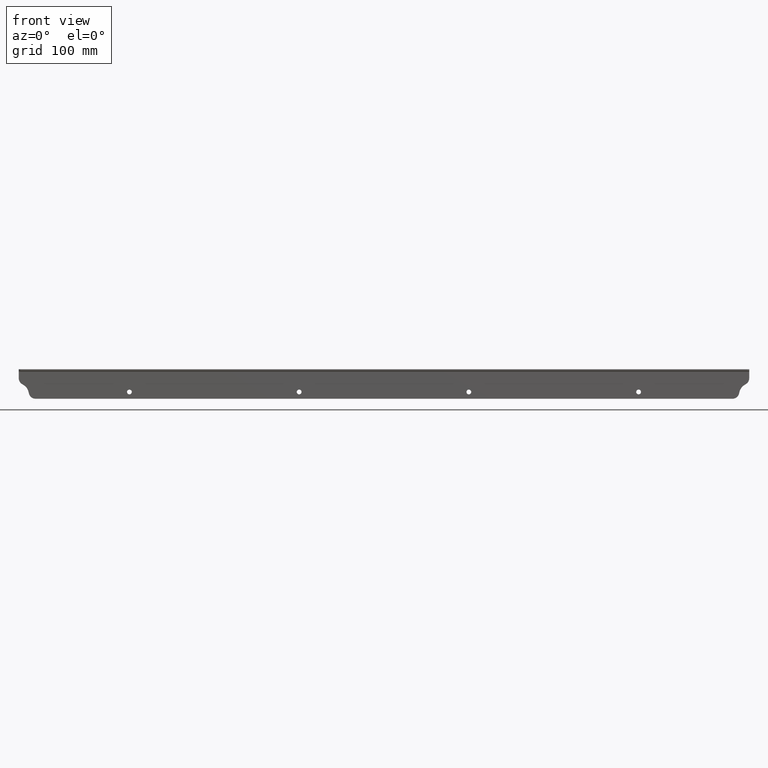
[diagram: clean part render]
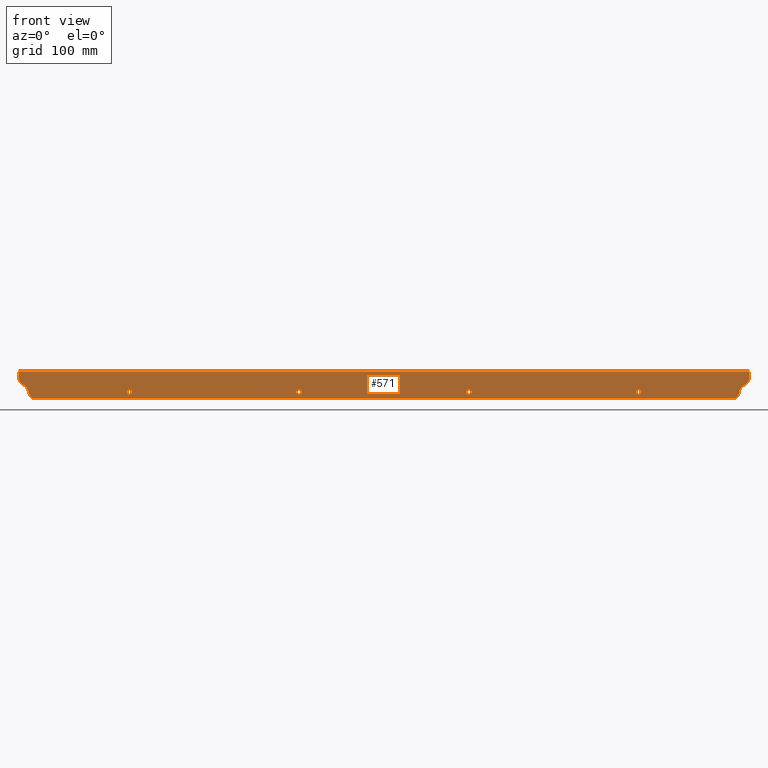
[diagram: same view with one face highlighted and labeled with its STEP entity id]
A machine part, front view. The second image highlights one B-rep face of the part: STEP entity #571.
In plain terms, the highlighted planar face has unit normal (-0, 1, 0).
Its self-contained STEP definition (entity closure, byte-faithful):
#6 = VERTEX_POINT ( 'NONE', #806 ) ;
#8 = VERTEX_POINT ( 'NONE', #691 ) ;
#12 = CIRCLE ( 'NONE', #1245, 10.00000000000000888 ) ;
#13 = DIRECTION ( 'NONE',  ( 0.000000000000000000, 0.000000000000000000, 1.000000000000000000 ) ) ;
#15 = CARTESIAN_POINT ( 'NONE',  ( 513.2979401543625499, 1086.305264068951146, 1223.999999999999318 ) ) ;
#24 = VERTEX_POINT ( 'NONE', #305 ) ;
#32 = EDGE_CURVE ( 'NONE', #136, #889, #115, .T. ) ;
#37 = CARTESIAN_POINT ( 'NONE',  ( 540.0000000000000000, 1086.305264068951146, 1220.000000000000000 ) ) ;
#44 = DIRECTION ( 'NONE',  ( 0.000000000000000000, 0.000000000000000000, 1.000000000000000000 ) ) ;
#46 = ORIENTED_EDGE ( 'NONE', *, *, #910, .T. ) ;
#49 = EDGE_CURVE ( 'NONE', #524, #147, #514, .T. ) ;
#51 = CARTESIAN_POINT ( 'NONE',  ( 125.0000000000000000, 1086.305264068951146, 1223.999999999999545 ) ) ;
#64 = EDGE_CURVE ( 'NONE', #147, #1262, #91, .T. ) ;
#65 = ORIENTED_EDGE ( 'NONE', *, *, #1186, .T. ) ;
#86 = DIRECTION ( 'NONE',  ( 0.000000000000000000, 0.000000000000000000, -1.000000000000000000 ) ) ;
#91 = CIRCLE ( 'NONE', #139, 10.00000000000000888 ) ;
#103 = CARTESIAN_POINT ( 'NONE',  ( 523.1875919490430533, 1086.305264068951146, 1222.518518518518022 ) ) ;
#111 = EDGE_CURVE ( 'NONE', #6, #1047, #720, .T. ) ;
#113 = DIRECTION ( 'NONE',  ( -0.000000000000000000, 1.000000000000000000, 0.000000000000000000 ) ) ;
#115 = CIRCLE ( 'NONE', #1173, 3.499999999989844568 ) ;
#133 = DIRECTION ( 'NONE',  ( 0.000000000000000000, -0.000000000000000000, 1.000000000000000000 ) ) ;
#135 = VERTEX_POINT ( 'NONE', #518 ) ;
#136 = VERTEX_POINT ( 'NONE', #1115 ) ;
#139 = AXIS2_PLACEMENT_3D ( 'NONE', #1108, #990, #229 ) ;
#142 = CIRCLE ( 'NONE', #187, 3.499999999989844568 ) ;
#146 = CIRCLE ( 'NONE', #1176, 3.499999999989844568 ) ;
#147 = VERTEX_POINT ( 'NONE', #926 ) ;
#149 = DIRECTION ( 'NONE',  ( 0.000000000000000000, 0.000000000000000000, 1.000000000000000000 ) ) ;
#152 = DIRECTION ( 'NONE',  ( -0.000000000000000000, 1.000000000000000000, 0.000000000000000000 ) ) ;
#164 = DIRECTION ( 'NONE',  ( 0.000000000000000000, 0.000000000000000000, 1.000000000000000000 ) ) ;
#165 = AXIS2_PLACEMENT_3D ( 'NONE', #946, #649, #164 ) ;
#187 = AXIS2_PLACEMENT_3D ( 'NONE', #335, #918, #13 ) ;
#189 = DIRECTION ( 'NONE',  ( -0.000000000000000000, 1.000000000000000000, 0.000000000000000000 ) ) ;
#192 = ORIENTED_EDGE ( 'NONE', *, *, #982, .T. ) ;
#207 = ORIENTED_EDGE ( 'NONE', *, *, #379, .F. ) ;
#215 = VERTEX_POINT ( 'NONE', #1050 ) ;
#217 = AXIS2_PLACEMENT_3D ( 'NONE', #721, #839, #44 ) ;
#221 = DIRECTION ( 'NONE',  ( -0.000000000000000000, 1.000000000000000000, 0.000000000000000000 ) ) ;
#229 = DIRECTION ( 'NONE',  ( 0.000000000000000000, 0.000000000000000000, 1.000000000000000000 ) ) ;
#235 = ORIENTED_EDGE ( 'NONE', *, *, #874, .T. ) ;
#236 = CIRCLE ( 'NONE', #440, 3.499999999989844568 ) ;
#243 = CARTESIAN_POINT ( 'NONE',  ( 605.0096185640381918, 1086.305264068951146, 1257.499999999999545 ) ) ;
#254 = ORIENTED_EDGE ( 'NONE', *, *, #1061, .T. ) ;
#267 = CARTESIAN_POINT ( 'NONE',  ( -538.0000000000001137, 1086.305264068951146, 1253.499999999999545 ) ) ;
#271 = DIRECTION ( 'NONE',  ( 0.000000000000000000, 0.000000000000000000, 1.000000000000000000 ) ) ;
#274 = CIRCLE ( 'NONE', #165, 3.499999999989844568 ) ;
#275 = ORIENTED_EDGE ( 'NONE', *, *, #111, .T. ) ;
#282 = VERTEX_POINT ( 'NONE', #267 ) ;
#284 = EDGE_CURVE ( 'NONE', #215, #628, #274, .T. ) ;
#292 = VERTEX_POINT ( 'NONE', #553 ) ;
#295 = AXIS2_PLACEMENT_3D ( 'NONE', #37, #152, #616 ) ;
#301 = CARTESIAN_POINT ( 'NONE',  ( -125.0000000000000000, 1086.305264068951146, 1227.499999999989313 ) ) ;
#305 = CARTESIAN_POINT ( 'NONE',  ( -538.0000000000001137, 1086.305264068951146, 1244.186773244895903 ) ) ;
#319 = EDGE_LOOP ( 'NONE', ( #207, #65, #936, #254, #275, #342, #235, #192, #830, #922 ) ) ;
#324 = DIRECTION ( 'NONE',  ( 0.000000000000000000, 0.000000000000000000, 1.000000000000000000 ) ) ;
#330 = CARTESIAN_POINT ( 'NONE',  ( -375.0000000000000000, 1086.305264068951146, 1223.999999999999545 ) ) ;
#335 = CARTESIAN_POINT ( 'NONE',  ( -125.0000000000000000, 1086.305264068951146, 1223.999999999999545 ) ) ;
#342 = ORIENTED_EDGE ( 'NONE', *, *, #710, .T. ) ;
#350 = CARTESIAN_POINT ( 'NONE',  ( 125.0000000000000000, 1086.305264068951146, 1223.999999999999545 ) ) ;
#351 = CIRCLE ( 'NONE', #295, 16.99999999999990408 ) ;
#353 = CIRCLE ( 'NONE', #1243, 3.499999999989844568 ) ;
#379 = EDGE_CURVE ( 'NONE', #292, #1262, #784, .T. ) ;
#381 = LINE ( 'NONE', #764, #394 ) ;
#390 = CARTESIAN_POINT ( 'NONE',  ( -375.0000000000000000, 1086.305264068951146, 1223.999999999999545 ) ) ;
#394 = VECTOR ( 'NONE', #1068, 1000.000000000000000 ) ;
#419 = VERTEX_POINT ( 'NONE', #103 ) ;
#426 = PLANE ( 'NONE',  #1074 ) ;
#440 = AXIS2_PLACEMENT_3D ( 'NONE', #330, #113, #591 ) ;
#447 = FACE_BOUND ( 'NONE', #1092, .T. ) ;
#484 = CARTESIAN_POINT ( 'NONE',  ( 125.0000000000000000, 1086.305264068951146, 1220.500000000009777 ) ) ;
#488 = DIRECTION ( 'NONE',  ( 0.000000000000000000, 0.000000000000000000, 1.000000000000000000 ) ) ;
#514 = CIRCLE ( 'NONE', #590, 16.99999999999990408 ) ;
#517 = EDGE_CURVE ( 'NONE', #889, #136, #142, .T. ) ;
#518 = CARTESIAN_POINT ( 'NONE',  ( 532.4444444444444571, 1086.305264068951146, 1235.228709080119415 ) ) ;
#524 = VERTEX_POINT ( 'NONE', #838 ) ;
#526 = CARTESIAN_POINT ( 'NONE',  ( -528.0000000000001137, 1086.305264068951146, 1244.186773244895903 ) ) ;
#543 = EDGE_LOOP ( 'NONE', ( #46, #929 ) ) ;
#545 = DIRECTION ( 'NONE',  ( 0.000000000000000000, -1.000000000000000000, -0.000000000000000000 ) ) ;
#553 = CARTESIAN_POINT ( 'NONE',  ( 513.2979401543625499, 1086.305264068951146, 1213.999999999999318 ) ) ;
#554 = CIRCLE ( 'NONE', #1035, 3.499999999989844568 ) ;
#557 = EDGE_CURVE ( 'NONE', #419, #135, #351, .T. ) ;
#559 = DIRECTION ( 'NONE',  ( 0.000000000000000000, 0.000000000000000000, 1.000000000000000000 ) ) ;
#571 = ADVANCED_FACE ( 'NONE', ( #713, #447, #726, #1017, #620 ), #426, .F. ) ;
#577 = ORIENTED_EDGE ( 'NONE', *, *, #707, .T. ) ;
#590 = AXIS2_PLACEMENT_3D ( 'NONE', #610, #221, #324 ) ;
#591 = DIRECTION ( 'NONE',  ( 0.000000000000000000, 0.000000000000000000, 1.000000000000000000 ) ) ;
#598 = CIRCLE ( 'NONE', #217, 3.499999999989844568 ) ;
#603 = DIRECTION ( 'NONE',  ( 0.000000000000000000, 0.000000000000000000, 1.000000000000000000 ) ) ;
#610 = CARTESIAN_POINT ( 'NONE',  ( -540.0000000000000000, 1086.305264068951146, 1220.000000000000227 ) ) ;
#615 = CIRCLE ( 'NONE', #954, 10.00000000000000888 ) ;
#616 = DIRECTION ( 'NONE',  ( 0.000000000000000000, 0.000000000000000000, 1.000000000000000000 ) ) ;
#620 = FACE_OUTER_BOUND ( 'NONE', #319, .T. ) ;
#628 = VERTEX_POINT ( 'NONE', #1022 ) ;
#632 = VECTOR ( 'NONE', #881, 1000.000000000000000 ) ;
#649 = DIRECTION ( 'NONE',  ( -0.000000000000000000, 1.000000000000000000, 0.000000000000000000 ) ) ;
#666 = DIRECTION ( 'NONE',  ( -0.000000000000000000, 1.000000000000000000, 0.000000000000000000 ) ) ;
#679 = VECTOR ( 'NONE', #86, 1000.000000000000000 ) ;
#686 = CARTESIAN_POINT ( 'NONE',  ( -125.0000000000000000, 1086.305264068951146, 1223.999999999999545 ) ) ;
#691 = CARTESIAN_POINT ( 'NONE',  ( -375.0000000000000000, 1086.305264068951146, 1227.499999999989313 ) ) ;
#700 = CARTESIAN_POINT ( 'NONE',  ( 605.0096185640381918, 1086.305264068951146, 1213.999999999999318 ) ) ;
#707 = EDGE_CURVE ( 'NONE', #1150, #1288, #353, .T. ) ;
#710 = EDGE_CURVE ( 'NONE', #1047, #282, #381, .T. ) ;
#713 = FACE_BOUND ( 'NONE', #767, .T. ) ;
#720 = LINE ( 'NONE', #1128, #968 ) ;
#721 = CARTESIAN_POINT ( 'NONE',  ( 375.0000000000000000, 1086.305264068951146, 1223.999999999999545 ) ) ;
#726 = FACE_BOUND ( 'NONE', #543, .T. ) ;
#729 = ORIENTED_EDGE ( 'NONE', *, *, #517, .T. ) ;
#764 = CARTESIAN_POINT ( 'NONE',  ( 605.0096185640381918, 1086.305264068951146, 1253.499999999999545 ) ) ;
#767 = EDGE_LOOP ( 'NONE', ( #867, #577 ) ) ;
#784 = LINE ( 'NONE', #700, #632 ) ;
#785 = DIRECTION ( 'NONE',  ( -0.000000000000000000, 1.000000000000000000, 0.000000000000000000 ) ) ;
#803 = EDGE_CURVE ( 'NONE', #1288, #1150, #146, .T. ) ;
#806 = CARTESIAN_POINT ( 'NONE',  ( 538.0000000000000000, 1086.305264068951146, 1244.186773244895676 ) ) ;
#811 = DIRECTION ( 'NONE',  ( -0.000000000000000000, 1.000000000000000000, 0.000000000000000000 ) ) ;
#824 = CARTESIAN_POINT ( 'NONE',  ( 538.0000000000000000, 1086.305264068951146, 1253.499999999999545 ) ) ;
#830 = ORIENTED_EDGE ( 'NONE', *, *, #49, .T. ) ;
#832 = DIRECTION ( 'NONE',  ( 0.000000000000000000, 0.000000000000000000, 1.000000000000000000 ) ) ;
#835 = VERTEX_POINT ( 'NONE', #1056 ) ;
#838 = CARTESIAN_POINT ( 'NONE',  ( -532.4444444444444571, 1086.305264068951146, 1235.228709080119643 ) ) ;
#839 = DIRECTION ( 'NONE',  ( -0.000000000000000000, 1.000000000000000000, 0.000000000000000000 ) ) ;
#843 = CARTESIAN_POINT ( 'NONE',  ( 528.0000000000000000, 1086.305264068951146, 1244.186773244895676 ) ) ;
#867 = ORIENTED_EDGE ( 'NONE', *, *, #803, .T. ) ;
#868 = ORIENTED_EDGE ( 'NONE', *, *, #284, .T. ) ;
#874 = EDGE_CURVE ( 'NONE', #282, #24, #983, .T. ) ;
#881 = DIRECTION ( 'NONE',  ( -1.000000000000000000, -0.000000000000000000, -0.000000000000000000 ) ) ;
#889 = VERTEX_POINT ( 'NONE', #301 ) ;
#891 = CIRCLE ( 'NONE', #1057, 10.00000000000000888 ) ;
#894 = CARTESIAN_POINT ( 'NONE',  ( -538.0000000000001137, 1086.305264068951146, 1257.499999999999545 ) ) ;
#910 = EDGE_CURVE ( 'NONE', #8, #835, #554, .T. ) ;
#918 = DIRECTION ( 'NONE',  ( -0.000000000000000000, 1.000000000000000000, 0.000000000000000000 ) ) ;
#922 = ORIENTED_EDGE ( 'NONE', *, *, #64, .T. ) ;
#926 = CARTESIAN_POINT ( 'NONE',  ( -523.1875919490430533, 1086.305264068951146, 1222.518518518518022 ) ) ;
#929 = ORIENTED_EDGE ( 'NONE', *, *, #1192, .T. ) ;
#936 = ORIENTED_EDGE ( 'NONE', *, *, #557, .T. ) ;
#946 = CARTESIAN_POINT ( 'NONE',  ( 375.0000000000000000, 1086.305264068951146, 1223.999999999999545 ) ) ;
#954 = AXIS2_PLACEMENT_3D ( 'NONE', #843, #545, #149 ) ;
#968 = VECTOR ( 'NONE', #133, 1000.000000000000000 ) ;
#982 = EDGE_CURVE ( 'NONE', #24, #524, #891, .T. ) ;
#983 = LINE ( 'NONE', #894, #679 ) ;
#990 = DIRECTION ( 'NONE',  ( 0.000000000000000000, -1.000000000000000000, -0.000000000000000000 ) ) ;
#1007 = ORIENTED_EDGE ( 'NONE', *, *, #32, .T. ) ;
#1016 = DIRECTION ( 'NONE',  ( 0.000000000000000000, -1.000000000000000000, -0.000000000000000000 ) ) ;
#1017 = FACE_BOUND ( 'NONE', #1242, .T. ) ;
#1022 = CARTESIAN_POINT ( 'NONE',  ( 375.0000000000000000, 1086.305264068951146, 1220.500000000009777 ) ) ;
#1035 = AXIS2_PLACEMENT_3D ( 'NONE', #390, #189, #603 ) ;
#1047 = VERTEX_POINT ( 'NONE', #824 ) ;
#1050 = CARTESIAN_POINT ( 'NONE',  ( 375.0000000000000000, 1086.305264068951146, 1227.499999999989313 ) ) ;
#1056 = CARTESIAN_POINT ( 'NONE',  ( -375.0000000000000000, 1086.305264068951146, 1220.500000000009777 ) ) ;
#1057 = AXIS2_PLACEMENT_3D ( 'NONE', #526, #1016, #832 ) ;
#1061 = EDGE_CURVE ( 'NONE', #135, #6, #615, .T. ) ;
#1068 = DIRECTION ( 'NONE',  ( -1.000000000000000000, -0.000000000000000000, -0.000000000000000000 ) ) ;
#1074 = AXIS2_PLACEMENT_3D ( 'NONE', #243, #811, #1127 ) ;
#1092 = EDGE_LOOP ( 'NONE', ( #729, #1007 ) ) ;
#1108 = CARTESIAN_POINT ( 'NONE',  ( -513.2979401543624363, 1086.305264068951146, 1223.999999999999318 ) ) ;
#1115 = CARTESIAN_POINT ( 'NONE',  ( -125.0000000000000000, 1086.305264068951146, 1220.500000000009777 ) ) ;
#1127 = DIRECTION ( 'NONE',  ( 0.000000000000000000, -0.000000000000000000, 1.000000000000000000 ) ) ;
#1128 = CARTESIAN_POINT ( 'NONE',  ( 538.0000000000000000, 1086.305264068951146, 1257.499999999999545 ) ) ;
#1150 = VERTEX_POINT ( 'NONE', #484 ) ;
#1173 = AXIS2_PLACEMENT_3D ( 'NONE', #686, #785, #488 ) ;
#1176 = AXIS2_PLACEMENT_3D ( 'NONE', #51, #1252, #271 ) ;
#1185 = DIRECTION ( 'NONE',  ( 0.000000000000000000, -1.000000000000000000, -0.000000000000000000 ) ) ;
#1186 = EDGE_CURVE ( 'NONE', #292, #419, #12, .T. ) ;
#1190 = CARTESIAN_POINT ( 'NONE',  ( -513.2979401543623226, 1086.305264068951146, 1213.999999999999318 ) ) ;
#1192 = EDGE_CURVE ( 'NONE', #835, #8, #236, .T. ) ;
#1201 = ORIENTED_EDGE ( 'NONE', *, *, #1279, .T. ) ;
#1217 = DIRECTION ( 'NONE',  ( 0.000000000000000000, 0.000000000000000000, 1.000000000000000000 ) ) ;
#1229 = CARTESIAN_POINT ( 'NONE',  ( 125.0000000000000000, 1086.305264068951146, 1227.499999999989313 ) ) ;
#1242 = EDGE_LOOP ( 'NONE', ( #868, #1201 ) ) ;
#1243 = AXIS2_PLACEMENT_3D ( 'NONE', #350, #666, #559 ) ;
#1245 = AXIS2_PLACEMENT_3D ( 'NONE', #15, #1185, #1217 ) ;
#1252 = DIRECTION ( 'NONE',  ( -0.000000000000000000, 1.000000000000000000, 0.000000000000000000 ) ) ;
#1262 = VERTEX_POINT ( 'NONE', #1190 ) ;
#1279 = EDGE_CURVE ( 'NONE', #628, #215, #598, .T. ) ;
#1288 = VERTEX_POINT ( 'NONE', #1229 ) ;